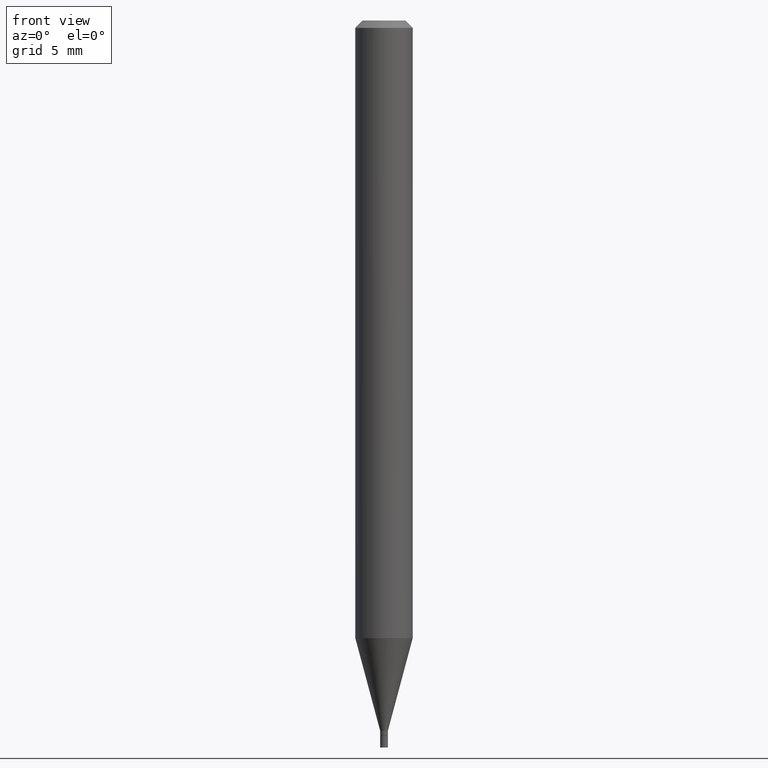
[diagram: clean part render]
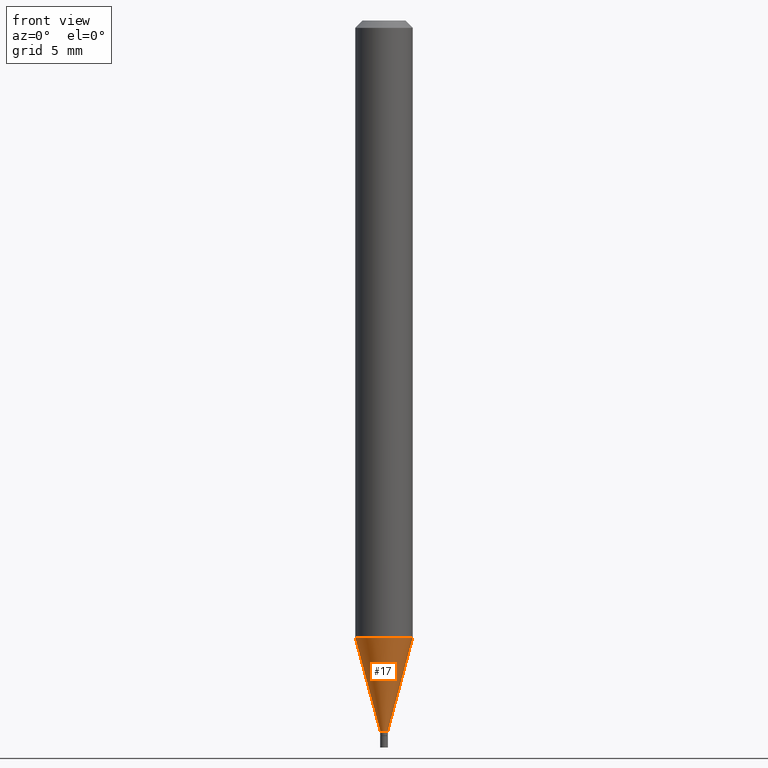
[diagram: same view with one face highlighted and labeled with its STEP entity id]
A machine part, front view. The second image highlights one B-rep face of the part: STEP entity #17.
In plain terms, the highlighted conical surface has half-angle 15 deg.
Its self-contained STEP definition (entity closure, byte-faithful):
#4 = CIRCLE ( 'NONE', #458, 0.05904999999999999832 ) ;
#14 = CARTESIAN_POINT ( 'NONE',  ( 0.05904999999999998445, -4.850083061227587038E-15, -1.271018998652473808 ) ) ;
#17 = ADVANCED_FACE ( 'NONE', ( #23 ), #164, .T. ) ;
#23 = FACE_OUTER_BOUND ( 'NONE', #38, .T. ) ;
#38 = EDGE_LOOP ( 'NONE', ( #100, #79, #54, #309 ) ) ;
#54 = ORIENTED_EDGE ( 'NONE', *, *, #233, .T. ) ;
#60 = CARTESIAN_POINT ( 'NONE',  ( 0.007849999999999919542, -5.159711122542399474E-15, -1.462099999999999955 ) ) ;
#79 = ORIENTED_EDGE ( 'NONE', *, *, #438, .T. ) ;
#100 = ORIENTED_EDGE ( 'NONE', *, *, #295, .F. ) ;
#114 = AXIS2_PLACEMENT_3D ( 'NONE', #174, #302, #450 ) ;
#134 = DIRECTION ( 'NONE',  ( 0.2588190451025214611, 1.565188264969621573E-15, 0.9659258262890682012 ) ) ;
#164 = CONICAL_SURFACE ( 'NONE', #114, 0.007849999999999919542, 0.2617993877991501295 ) ;
#169 = VERTEX_POINT ( 'NONE', #14 ) ;
#173 = DIRECTION ( 'NONE',  ( -0.2588190451025214611, 5.211531920934551042E-15, 0.9659258262890682012 ) ) ;
#174 = CARTESIAN_POINT ( 'NONE',  ( 3.575519941523288144E-29, -5.104894865522562684E-15, -1.462099999999999955 ) ) ;
#198 = CARTESIAN_POINT ( 'NONE',  ( -0.007849999999999919542, -4.533640445204635216E-15, -1.462099999999999955 ) ) ;
#208 = VECTOR ( 'NONE', #173, 39.37007874015747433 ) ;
#216 = CARTESIAN_POINT ( 'NONE',  ( 0.007849999999999919542, -5.159711122542399474E-15, -1.462099999999999955 ) ) ;
#233 = EDGE_CURVE ( 'NONE', #248, #169, #352, .T. ) ;
#234 = DIRECTION ( 'NONE',  ( 1.000000000000000000, -6.982962677686273021E-15, 0.000000000000000000 ) ) ;
#236 = CARTESIAN_POINT ( 'NONE',  ( 3.575519941523288144E-29, -5.104894865522562684E-15, -1.462099999999999955 ) ) ;
#241 = CARTESIAN_POINT ( 'NONE',  ( -0.007849999999999919542, -5.049117260765395441E-15, -1.462099999999999955 ) ) ;
#248 = VERTEX_POINT ( 'NONE', #60 ) ;
#257 = VERTEX_POINT ( 'NONE', #198 ) ;
#258 = VECTOR ( 'NONE', #134, 39.37007874015747433 ) ;
#259 = AXIS2_PLACEMENT_3D ( 'NONE', #236, #460, #380 ) ;
#273 = CARTESIAN_POINT ( 'NONE',  ( 3.108237313273292970E-29, -4.437739115110212907E-15, -1.271018998652473808 ) ) ;
#274 = DIRECTION ( 'NONE',  ( -2.445468806185136597E-29, 3.491481338843145583E-15, 1.000000000000000000 ) ) ;
#277 = CARTESIAN_POINT ( 'NONE',  ( -0.05904999999999998445, -4.018163629643874203E-15, -1.271018998652473808 ) ) ;
#295 = EDGE_CURVE ( 'NONE', #257, #296, #462, .T. ) ;
#296 = VERTEX_POINT ( 'NONE', #277 ) ;
#302 = DIRECTION ( 'NONE',  ( -2.445468806185136597E-29, 3.491481338843145583E-15, 1.000000000000000000 ) ) ;
#309 = ORIENTED_EDGE ( 'NONE', *, *, #401, .F. ) ;
#318 = CIRCLE ( 'NONE', #259, 0.007849999999999919542 ) ;
#352 = LINE ( 'NONE', #216, #258 ) ;
#380 = DIRECTION ( 'NONE',  ( 1.000000000000000000, -6.982962677686274599E-15, 0.000000000000000000 ) ) ;
#401 = EDGE_CURVE ( 'NONE', #296, #169, #4, .T. ) ;
#438 = EDGE_CURVE ( 'NONE', #257, #248, #318, .T. ) ;
#450 = DIRECTION ( 'NONE',  ( 1.000000000000000000, -6.982962677686274599E-15, 0.000000000000000000 ) ) ;
#458 = AXIS2_PLACEMENT_3D ( 'NONE', #273, #274, #234 ) ;
#460 = DIRECTION ( 'NONE',  ( -2.445468806185136597E-29, 3.491481338843145583E-15, 1.000000000000000000 ) ) ;
#462 = LINE ( 'NONE', #241, #208 ) ;